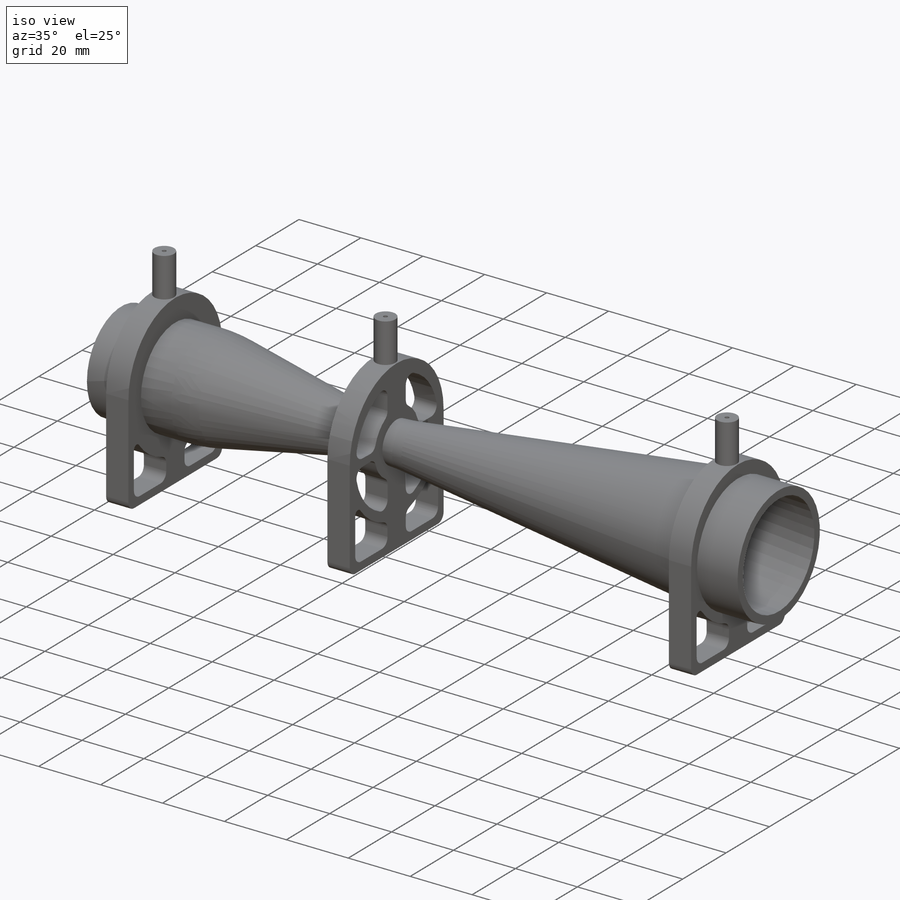
[diagram: iso view]
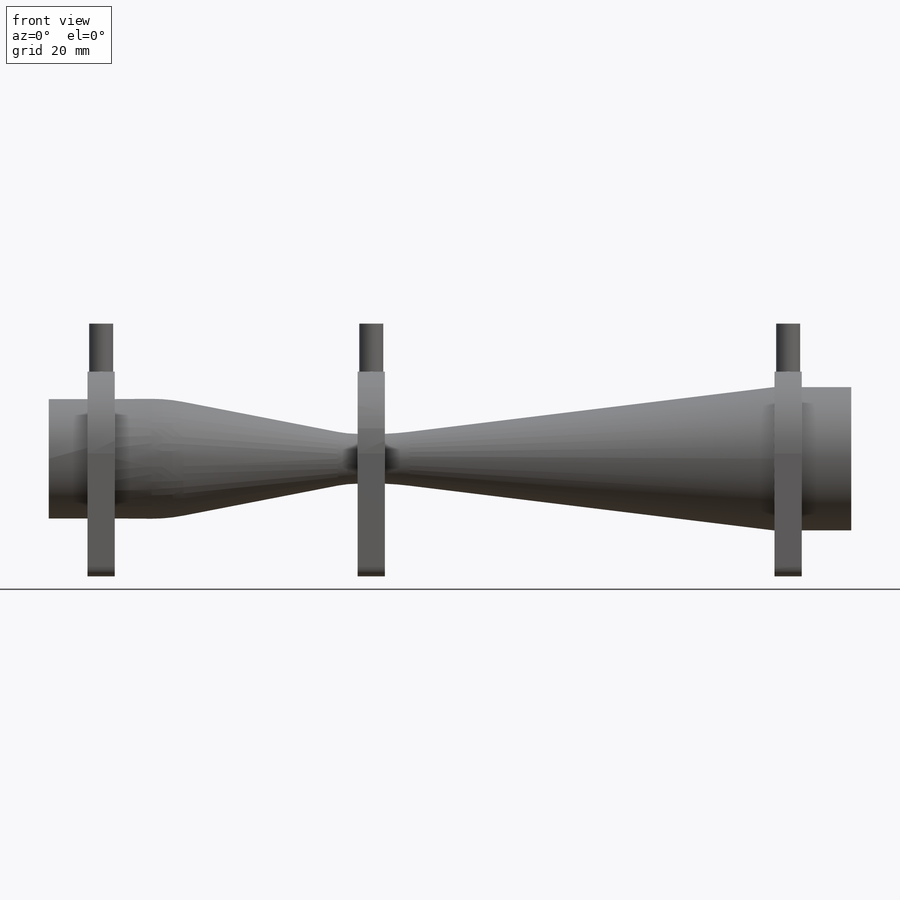
[diagram: front view]
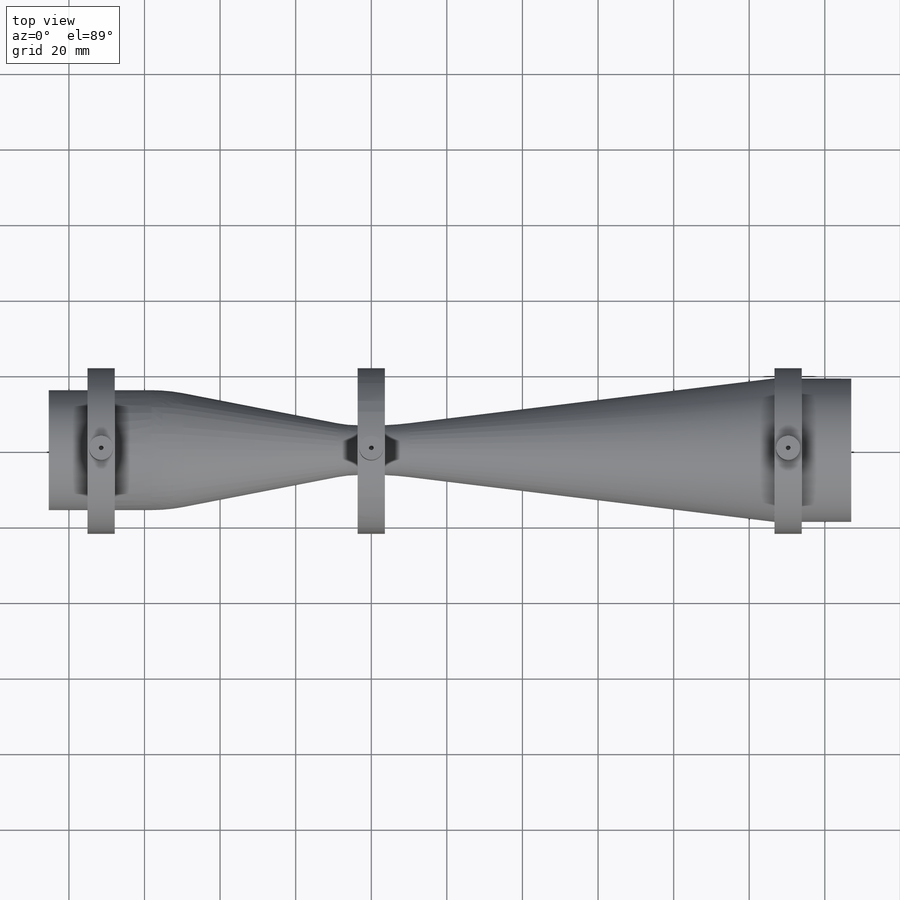
[diagram: top view]
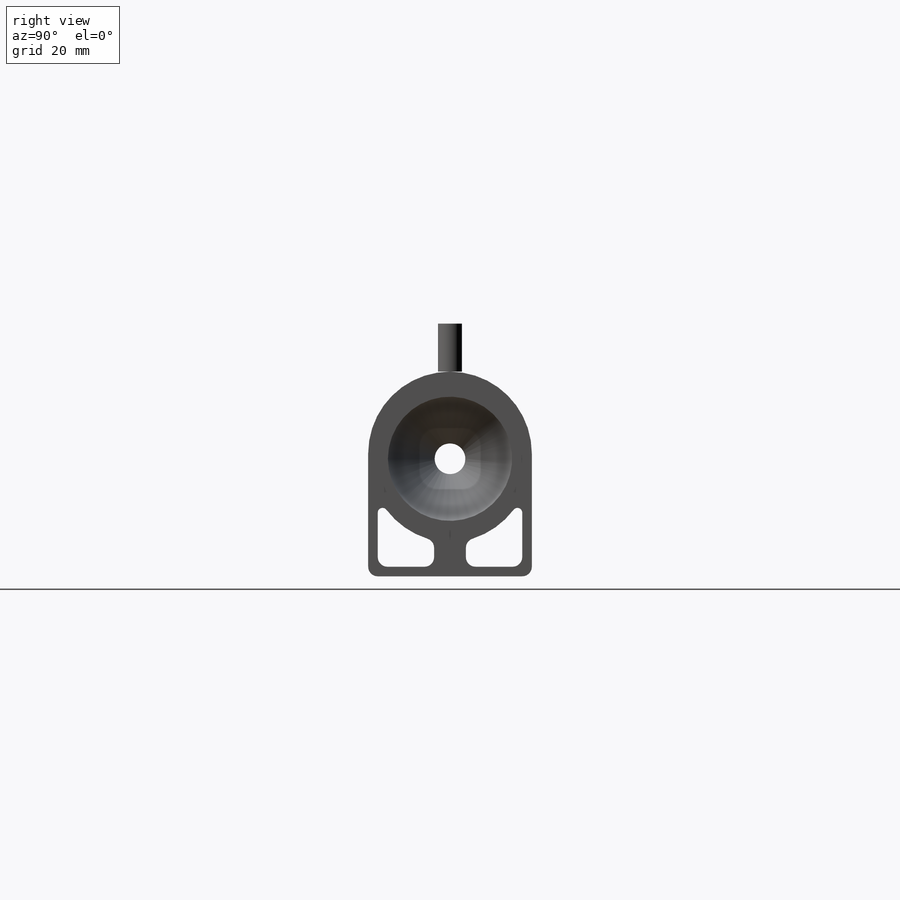
[diagram: right view]
SOLIDWORKS PART (.sldprt)
format: sldprt  version: not decoded by parser v0  size: 514,560 bytes
history: native  units: mm
features: sketch x7, plane x5, extrude x4, material x1, fillet x1, cut_extrude x1 (+14 scaffold rows collapsed; 1 parser-record rows omitted)
feature tree (34):
  scaffold x14  (default folders/planes/origin — collapsed)
  material  "Material <not specified>"
  sketch  "Sketch1"  dims[c1.D3=~20.858162mm c1.D6=~28.976002mm c1.D8=39.9669mm c1.D5=~20.858163mm c2.D3=~41.61155mm c2.D5=~41.716325mm c2.D11=~63.94704mm c3.D3=~29.975175mm c3.D6=~82.861872mm c3.D1=254.0mm c3.D2=27.178mm c4.D3=~23.286295mm c5.D3=~10.775342deg c6.D3=~1.063566mm c6.D4=13.3223mm c6.D5=~15.964168mm c7.D5=10.5deg c7.D6=~1.607822mm c7.D7=~2.66446mm c7.D8=~0.110247mm c7.D9=1.778mm c7.D10=1.778mm c7.D11=~9.826554mm c8.D6=~3.99669mm c8.D7=~17.652703mm c8.D3=~0.501491mm c8.D5=~0.509104mm c9.D7=~8.313115mm c9.D8=~16.026059mm c10.D8=11.0deg c10.D9=2.54mm c10.D10=2.54mm c10.D11=~0.123203mm c10.D12=2.54mm c10.D13=~117.337686mm c11.D13=~2.276408deg c12.D13=~125.814166mm c13.D13=5.0deg c14.D13=~125.669883mm c15.D13=7.0deg c15.D14=20.32mm c15.D16=~3.99669mm c15.D10=~4.156558mm c15.D3=~1.44339mm c15.D7=~12.110952mm c16.D10=~6.055476mm c16.D7=~8.313115mm c17.D10=~4.904438mm c17.D7=~4.156558mm c18.D10=4.064mm c18.D7=4.064mm c18.D11=~8.25656mm c18.D9=~7.208643mm c18.D15=2.54mm c19.D11=2.54mm c19.D10=2.54mm]
  plane  "Plane1"
  plane  "Plane2"  Offset=2.54mm
  parser-record x1  (decoder bookkeeping rows leaked as tree rows — omitted from the tree; the rows remain in map.json)
  plane  "Plane4"  Offset=13.8557mm
  sketch  "Sketch2"  dims[c1.D1=~21.649526mm c1.D3=2.54mm c1.D4=1.27mm c2.D1=~34.445777mm c2.D2=~6.878903mm c3.D1=2.54mm c3.D2=2.54mm c3.D5=~26.024514mm c4.D1=2.54mm]
  extrude  "Boss-Extrude1"  Depth=7.208643mm
  plane  "Plane5"
  sketch  "Sketch3"  dims[D1=2.54mm]
  extrude  "Boss-Extrude2"  Depth=7.208643mm
  fillet  "Fillet1"  Radius=2.54mm
  sketch  "Sketch4"  dims[c1.D1=25.4mm c1.D2=10.16mm c1.D3=2.54mm c2.D1=1.27mm]
  extrude  "Boss-Extrude3"  Depth=7.208643mm
  sketch  "Sketch6"  dims[D1=~182.840064mm]
  plane  "Plane7"
  sketch  "Sketch9"  dims[D1=6.35mm D2=1.27mm]
  extrude  "Boss-Extrude5"  Depth=12.7mm
  sketch  "Sketch10"
  cut_extrude  "Cut-Extrude2"  [1 undecoded]
decode coverage: 11 of 13 modeling features carry decoded parameters
note: ~ marks probable driven/reference dimensions
note: 1 parameter value undecoded
note: suppression state not decoded; provenance and decode notes live in map.json
